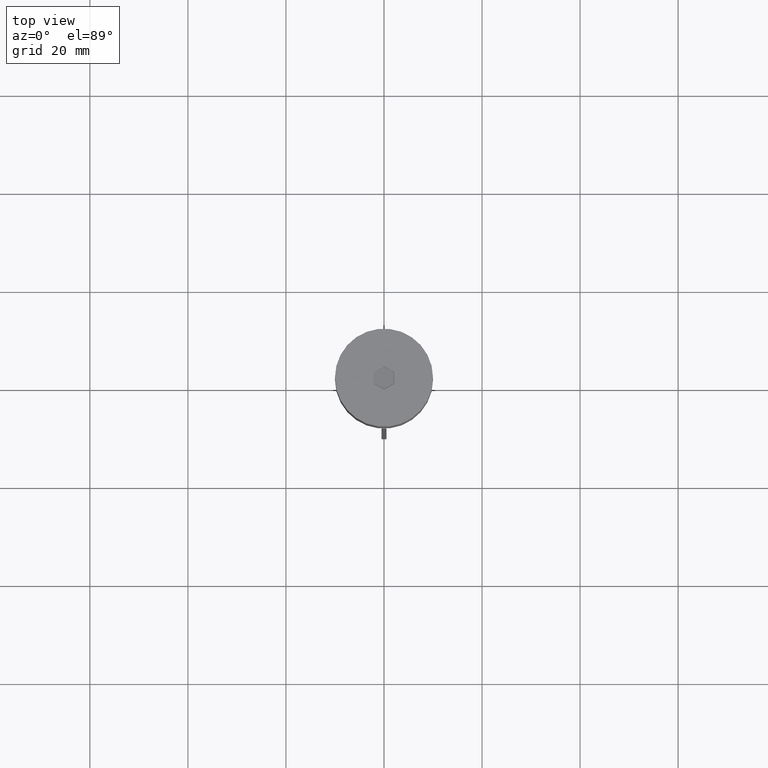
[diagram: clean part render]
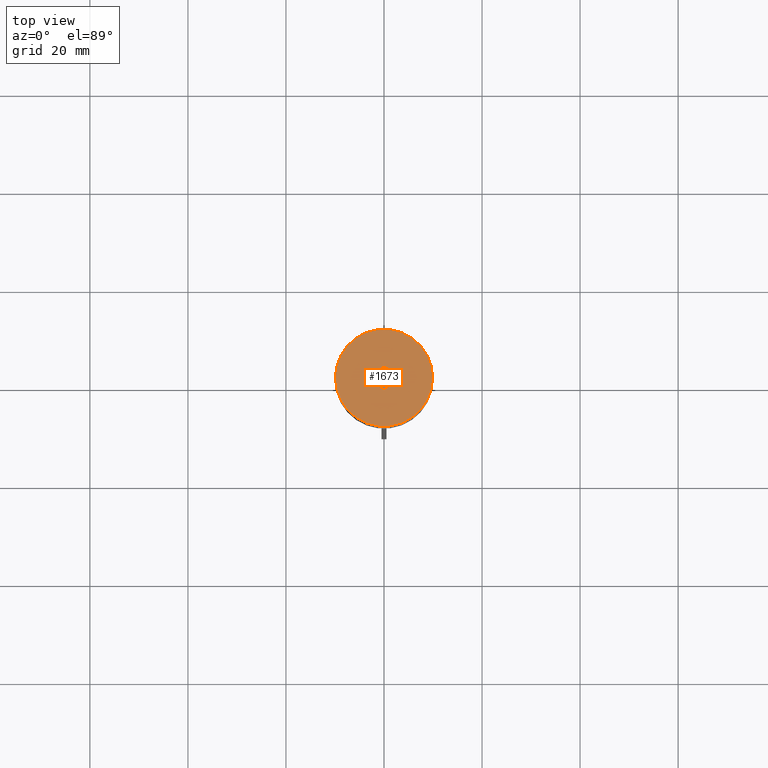
[diagram: same view with one face highlighted and labeled with its STEP entity id]
A machine part, top view. The second image highlights one B-rep face of the part: STEP entity #1673.
In plain terms, the highlighted planar face has unit normal (0, -0, 1).
Its self-contained STEP definition (entity closure, byte-faithful):
#11 = CIRCLE ( 'NONE', #279, 9.899999999999996803 ) ;
#21 = ORIENTED_EDGE ( 'NONE', *, *, #1484, .T. ) ;
#52 = EDGE_LOOP ( 'NONE', ( #2032, #1443, #1149, #123, #311, #732 ) ) ;
#56 = CARTESIAN_POINT ( 'NONE',  ( -2.099999999999998757, -1.212435565298214168, 0.000000000000000000 ) ) ;
#110 = ORIENTED_EDGE ( 'NONE', *, *, #2048, .T. ) ;
#123 = ORIENTED_EDGE ( 'NONE', *, *, #269, .T. ) ;
#130 = LINE ( 'NONE', #439, #1265 ) ;
#131 = CARTESIAN_POINT ( 'NONE',  ( 0.000000000000000000, 0.000000000000000000, 0.000000000000000000 ) ) ;
#138 = DIRECTION ( 'NONE',  ( -0.000000000000000000, -0.000000000000000000, 1.000000000000000000 ) ) ;
#152 = VECTOR ( 'NONE', #1860, 1000.000000000000000 ) ;
#179 = CIRCLE ( 'NONE', #2038, 9.899999999999996803 ) ;
#180 = DIRECTION ( 'NONE',  ( 0.000000000000000000, -1.000000000000000000, 0.000000000000000000 ) ) ;
#190 = VERTEX_POINT ( 'NONE', #1980 ) ;
#192 = VERTEX_POINT ( 'NONE', #56 ) ;
#224 = LINE ( 'NONE', #1989, #783 ) ;
#230 = CARTESIAN_POINT ( 'NONE',  ( 2.099999999999998757, 1.212435565298213502, 0.000000000000000000 ) ) ;
#269 = EDGE_CURVE ( 'NONE', #1261, #1868, #2037, .T. ) ;
#279 = AXIS2_PLACEMENT_3D ( 'NONE', #1221, #138, #1431 ) ;
#311 = ORIENTED_EDGE ( 'NONE', *, *, #1651, .T. ) ;
#314 = VERTEX_POINT ( 'NONE', #393 ) ;
#319 = LINE ( 'NONE', #1637, #1850 ) ;
#323 = CARTESIAN_POINT ( 'NONE',  ( 2.099999999999998757, -1.212435565298213502, 0.000000000000000000 ) ) ;
#340 = DIRECTION ( 'NONE',  ( -0.8660254037844388186, 0.4999999999999997780, 0.000000000000000000 ) ) ;
#392 = VERTEX_POINT ( 'NONE', #1103 ) ;
#393 = CARTESIAN_POINT ( 'NONE',  ( 5.195736975012550824E-16, -2.424871130596427005, 0.000000000000000000 ) ) ;
#439 = CARTESIAN_POINT ( 'NONE',  ( 0.04999999999999969746, -2.396003617136945874, 0.000000000000000000 ) ) ;
#457 = DIRECTION ( 'NONE',  ( -0.000000000000000000, -0.000000000000000000, 1.000000000000000000 ) ) ;
#567 = DIRECTION ( 'NONE',  ( 0.000000000000000000, -0.000000000000000000, 1.000000000000000000 ) ) ;
#572 = VERTEX_POINT ( 'NONE', #323 ) ;
#713 = AXIS2_PLACEMENT_3D ( 'NONE', #131, #567, #1404 ) ;
#732 = ORIENTED_EDGE ( 'NONE', *, *, #1220, .T. ) ;
#741 = VERTEX_POINT ( 'NONE', #230 ) ;
#783 = VECTOR ( 'NONE', #1824, 1000.000000000000000 ) ;
#861 = LINE ( 'NONE', #869, #152 ) ;
#869 = CARTESIAN_POINT ( 'NONE',  ( 2.049999999999999378, 1.241303078757694189, 0.000000000000000000 ) ) ;
#917 = EDGE_CURVE ( 'NONE', #572, #314, #130, .T. ) ;
#987 = CARTESIAN_POINT ( 'NONE',  ( 1.064135397276419674E-16, 2.424871130596426561, 0.000000000000000000 ) ) ;
#1103 = CARTESIAN_POINT ( 'NONE',  ( 9.899999999999996803, 0.000000000000000000, 0.000000000000000000 ) ) ;
#1149 = ORIENTED_EDGE ( 'NONE', *, *, #1537, .T. ) ;
#1216 = DIRECTION ( 'NONE',  ( 0.8660254037844387076, 0.4999999999999998890, 0.000000000000000000 ) ) ;
#1220 = EDGE_CURVE ( 'NONE', #741, #572, #319, .T. ) ;
#1221 = CARTESIAN_POINT ( 'NONE',  ( 0.000000000000000000, 0.000000000000000000, 0.000000000000000000 ) ) ;
#1231 = PLANE ( 'NONE',  #713 ) ;
#1261 = VERTEX_POINT ( 'NONE', #1284 ) ;
#1265 = VECTOR ( 'NONE', #1626, 999.9999999999998863 ) ;
#1281 = CARTESIAN_POINT ( 'NONE',  ( 0.000000000000000000, 0.000000000000000000, 0.000000000000000000 ) ) ;
#1284 = CARTESIAN_POINT ( 'NONE',  ( -2.099999999999998757, 1.212435565298213280, 0.000000000000000000 ) ) ;
#1321 = LINE ( 'NONE', #1806, #1709 ) ;
#1404 = DIRECTION ( 'NONE',  ( 1.000000000000000000, 0.000000000000000000, 0.000000000000000000 ) ) ;
#1427 = EDGE_LOOP ( 'NONE', ( #110, #21 ) ) ;
#1430 = EDGE_CURVE ( 'NONE', #314, #192, #1321, .T. ) ;
#1431 = DIRECTION ( 'NONE',  ( 1.000000000000000000, 0.000000000000000000, 0.000000000000000000 ) ) ;
#1443 = ORIENTED_EDGE ( 'NONE', *, *, #1430, .T. ) ;
#1484 = EDGE_CURVE ( 'NONE', #190, #392, #179, .T. ) ;
#1537 = EDGE_CURVE ( 'NONE', #192, #1261, #224, .T. ) ;
#1550 = CARTESIAN_POINT ( 'NONE',  ( -0.04999999999999967665, 2.396003617136944985, 0.000000000000000000 ) ) ;
#1626 = DIRECTION ( 'NONE',  ( -0.8660254037844385966, -0.5000000000000002220, 0.000000000000000000 ) ) ;
#1637 = CARTESIAN_POINT ( 'NONE',  ( 2.099999999999998757, -1.154700538379251684, 0.000000000000000000 ) ) ;
#1651 = EDGE_CURVE ( 'NONE', #1868, #741, #861, .T. ) ;
#1673 = ADVANCED_FACE ( 'NONE', ( #1734, #1745 ), #1231, .T. ) ;
#1709 = VECTOR ( 'NONE', #340, 1000.000000000000114 ) ;
#1734 = FACE_OUTER_BOUND ( 'NONE', #1427, .T. ) ;
#1745 = FACE_BOUND ( 'NONE', #52, .T. ) ;
#1761 = DIRECTION ( 'NONE',  ( 1.000000000000000000, 0.000000000000000000, 0.000000000000000000 ) ) ;
#1803 = VECTOR ( 'NONE', #1216, 1000.000000000000000 ) ;
#1806 = CARTESIAN_POINT ( 'NONE',  ( -2.049999999999999378, -1.241303078757695078, 0.000000000000000000 ) ) ;
#1824 = DIRECTION ( 'NONE',  ( 0.000000000000000000, 1.000000000000000000, 0.000000000000000000 ) ) ;
#1850 = VECTOR ( 'NONE', #180, 1000.000000000000000 ) ;
#1860 = DIRECTION ( 'NONE',  ( 0.8660254037844387076, -0.4999999999999998890, 0.000000000000000000 ) ) ;
#1868 = VERTEX_POINT ( 'NONE', #987 ) ;
#1980 = CARTESIAN_POINT ( 'NONE',  ( -9.899999999999996803, 1.218523565151615986E-15, 0.000000000000000000 ) ) ;
#1989 = CARTESIAN_POINT ( 'NONE',  ( -2.099999999999998757, 1.154700538379251018, 0.000000000000000000 ) ) ;
#2032 = ORIENTED_EDGE ( 'NONE', *, *, #917, .T. ) ;
#2037 = LINE ( 'NONE', #1550, #1803 ) ;
#2038 = AXIS2_PLACEMENT_3D ( 'NONE', #1281, #457, #1761 ) ;
#2048 = EDGE_CURVE ( 'NONE', #392, #190, #11, .T. ) ;